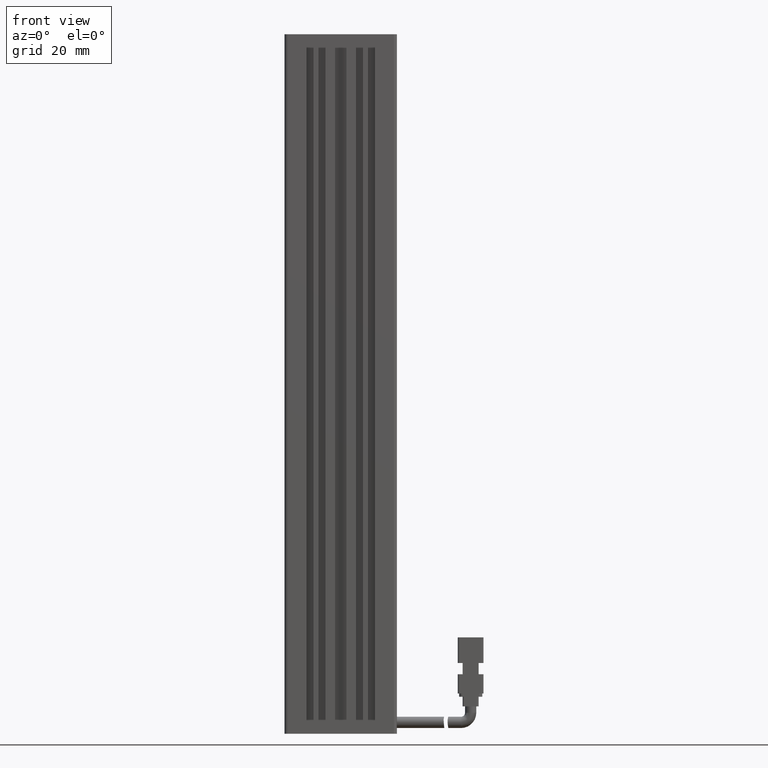
[diagram: clean part render]
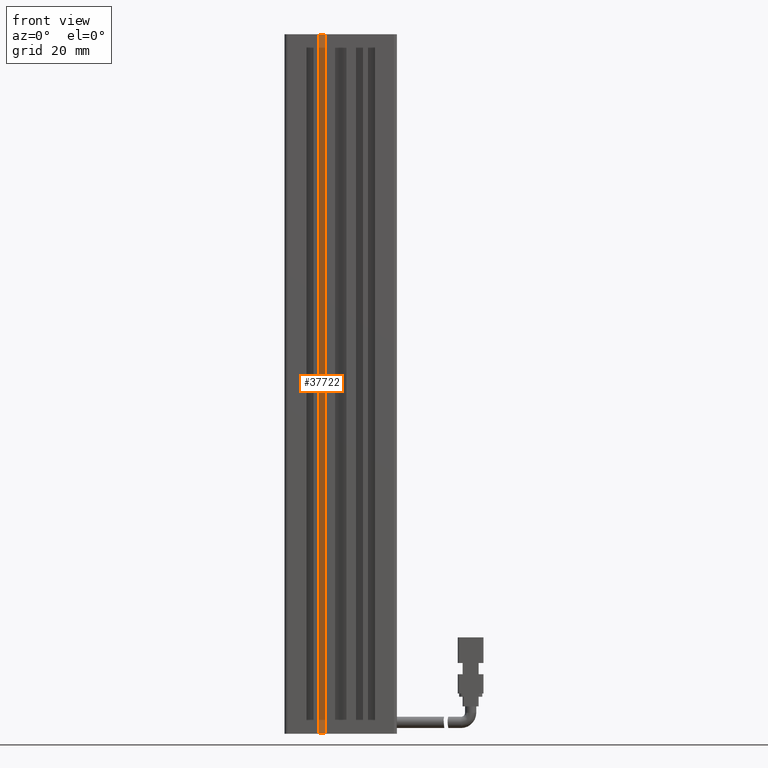
[diagram: same view with one face highlighted and labeled with its STEP entity id]
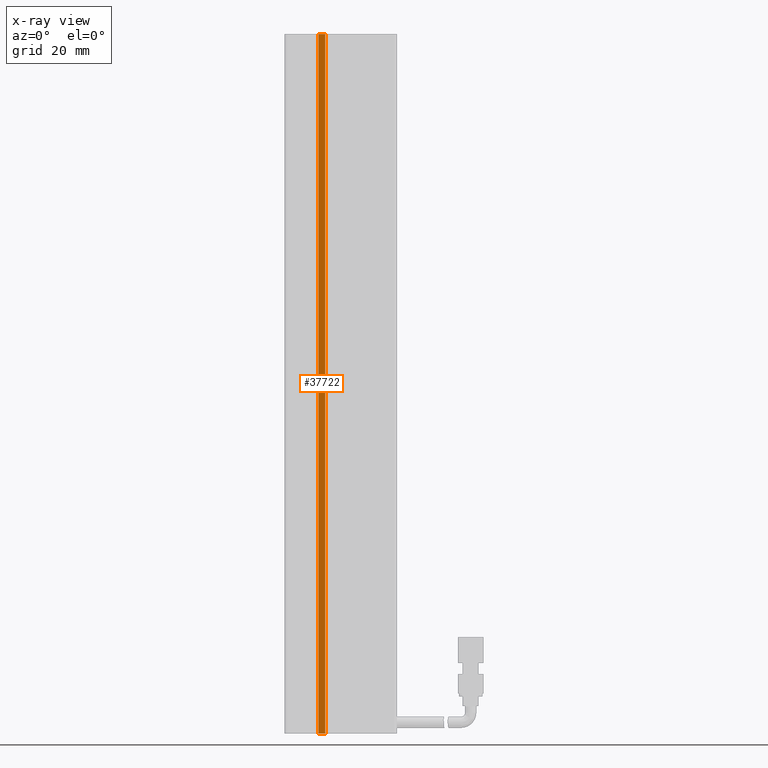
[diagram: x-ray of the same camera — body ghosted, the highlighted face saturated]
A machine part, front view. The second image highlights one B-rep face of the part: STEP entity #37722.
The next image is the same camera in x-ray: the body ghosted, the highlighted face saturated — about 0% of this face is hidden behind the body in this view.
In plain terms, the highlighted planar face has unit normal (-0, 1, 0).
Its self-contained STEP definition (entity closure, byte-faithful):
#362 = LINE ( 'NONE', #44424, #21109 ) ;
#382 = LINE ( 'NONE', #44915, #20001 ) ;
#3064 = DIRECTION ( 'NONE',  ( -0.0000000000000000000, -0.0000000000000000000, -1.000000000000000000 ) ) ;
#6591 = EDGE_CURVE ( 'NONE', #41594, #84445, #362, .T. ) ;
#8129 = LINE ( 'NONE', #79532, #85790 ) ;
#9937 = ORIENTED_EDGE ( 'NONE', *, *, #15270, .F. ) ;
#10353 = CARTESIAN_POINT ( 'NONE',  ( 36.12537974683543500, 16.49073232304837000, -224.0000000000000000 ) ) ;
#14046 = CARTESIAN_POINT ( 'NONE',  ( 36.12537974683543500, 16.49073232304837000, -6.000000000000005300 ) ) ;
#15270 = EDGE_CURVE ( 'NONE', #41492, #71338, #382, .T. ) ;
#16817 = ORIENTED_EDGE ( 'NONE', *, *, #76371, .F. ) ;
#19502 = AXIS2_PLACEMENT_3D ( 'NONE', #27336, #20579, #69619 ) ;
#20001 = VECTOR ( 'NONE', #3064, 1000.000000000000000 ) ;
#20579 = DIRECTION ( 'NONE',  ( -7.885106708985484100E-016, 1.000000000000000000, 0.0000000000000000000 ) ) ;
#21088 = CARTESIAN_POINT ( 'NONE',  ( 40.92537974683542500, 16.49073232304836600, -6.000000000000005300 ) ) ;
#21109 = VECTOR ( 'NONE', #58477, 1000.000000000000000 ) ;
#24686 = VECTOR ( 'NONE', #77173, 1000.000000000000000 ) ;
#27057 = PLANE ( 'NONE',  #19502 ) ;
#27336 = CARTESIAN_POINT ( 'NONE',  ( 40.92537974683541800, 16.49073232304837300, -6.000000000000005300 ) ) ;
#33976 = ORIENTED_EDGE ( 'NONE', *, *, #76776, .T. ) ;
#34329 = CARTESIAN_POINT ( 'NONE',  ( 33.92537974683543200, 16.49073232304837000, -6.000000000000005300 ) ) ;
#37722 = ADVANCED_FACE ( 'NONE', ( #52414 ), #27057, .F. ) ;
#41492 = VERTEX_POINT ( 'NONE', #14046 ) ;
#41594 = VERTEX_POINT ( 'NONE', #77713 ) ;
#44424 = CARTESIAN_POINT ( 'NONE',  ( 33.92537974683543200, 16.49073232304837000, -6.000000000000005300 ) ) ;
#44915 = CARTESIAN_POINT ( 'NONE',  ( 36.12537974683543500, 16.49073232304837000, -6.000000000000005300 ) ) ;
#45507 = LINE ( 'NONE', #21088, #24686 ) ;
#52414 = FACE_OUTER_BOUND ( 'NONE', #75637, .T. ) ;
#58477 = DIRECTION ( 'NONE',  ( 0.0000000000000000000, 0.0000000000000000000, 1.000000000000000000 ) ) ;
#65427 = DIRECTION ( 'NONE',  ( 1.000000000000000000, 0.0000000000000000000, 0.0000000000000000000 ) ) ;
#69619 = DIRECTION ( 'NONE',  ( -1.000000000000000000, -7.885106708985484100E-016, 0.0000000000000000000 ) ) ;
#71338 = VERTEX_POINT ( 'NONE', #10353 ) ;
#74900 = ORIENTED_EDGE ( 'NONE', *, *, #6591, .F. ) ;
#75637 = EDGE_LOOP ( 'NONE', ( #9937, #16817, #74900, #33976 ) ) ;
#76371 = EDGE_CURVE ( 'NONE', #84445, #41492, #45507, .T. ) ;
#76776 = EDGE_CURVE ( 'NONE', #41594, #71338, #8129, .T. ) ;
#77173 = DIRECTION ( 'NONE',  ( 1.000000000000000000, 0.0000000000000000000, 0.0000000000000000000 ) ) ;
#77713 = CARTESIAN_POINT ( 'NONE',  ( 33.92537974683543200, 16.49073232304837000, -224.0000000000000000 ) ) ;
#79532 = CARTESIAN_POINT ( 'NONE',  ( 40.92537974683542500, 16.49073232304836600, -224.0000000000000000 ) ) ;
#84445 = VERTEX_POINT ( 'NONE', #34329 ) ;
#85790 = VECTOR ( 'NONE', #65427, 1000.000000000000000 ) ;